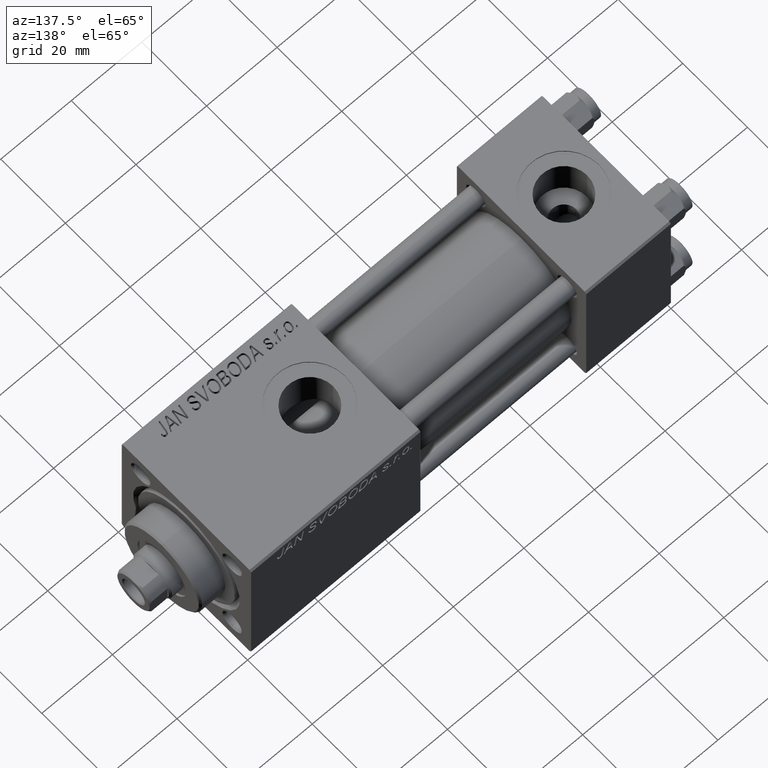
[diagram: clean part render]
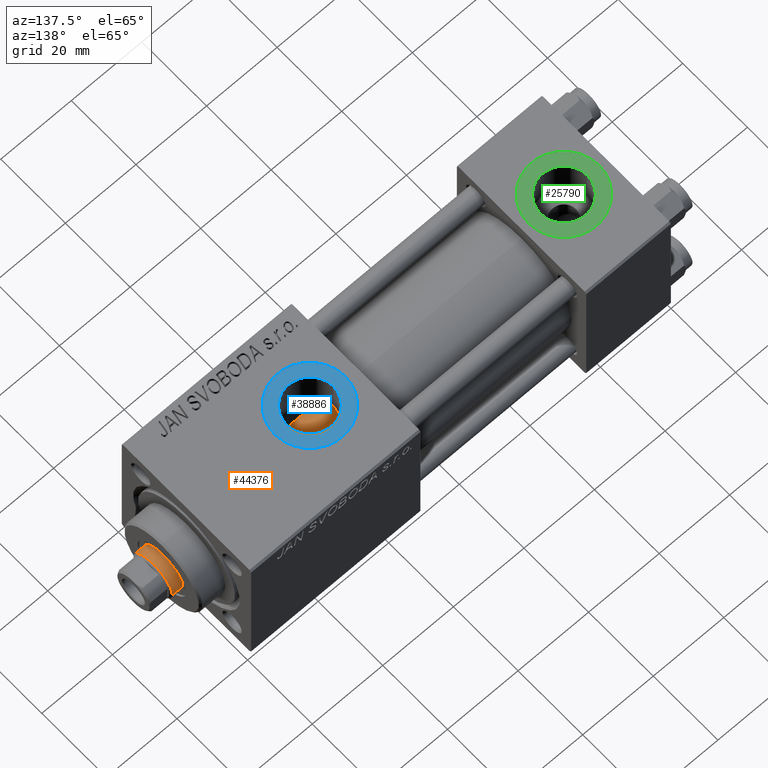
[diagram: same view with three faces highlighted in distinct colors, each labeled with its STEP entity id]
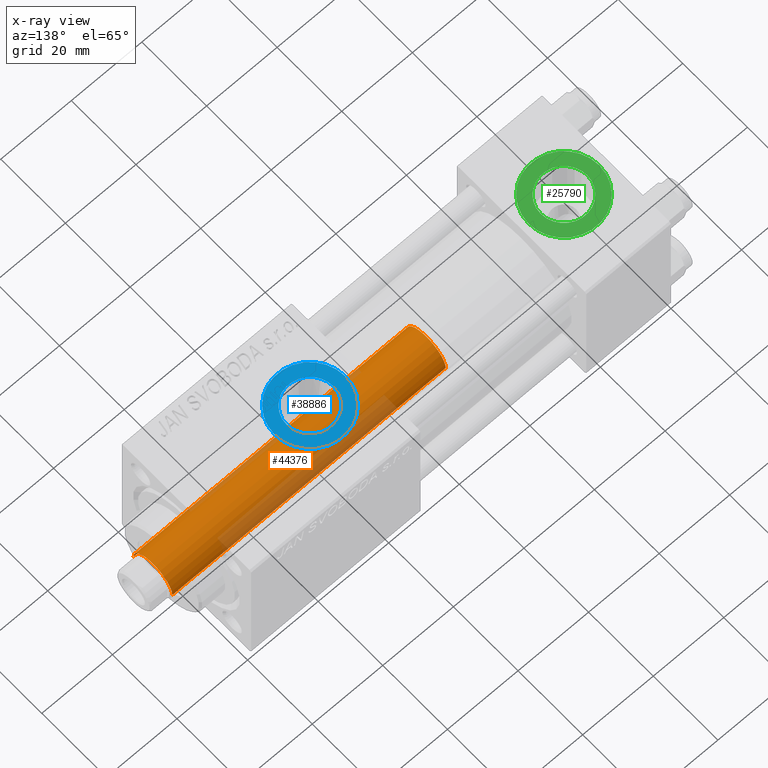
[diagram: x-ray of the same camera — body ghosted, the three highlighted faces saturated]
A machine part, auxiliary view with three faces highlighted in distinct colors.
The next image is the same camera in x-ray (body ghosted, the three faces saturated) — at least one of them is partly hidden behind the body in this view.
Their STEP definitions:

[orange] entity #44376 — the highlighted cylindrical surface (edge-blend (fillet) strip) has radius 6 mm, axis along (-1, 0, 0).
#307 = DIRECTION ( 'NONE',  ( 1.000000000000000000, 0.000000000000000000, 0.000000000000000000 ) ) ;
#438 = EDGE_CURVE ( 'NONE', #39662, #12034, #10447, .T. ) ;
#3072 = FACE_OUTER_BOUND ( 'NONE', #12816, .T. ) ;
#5987 = VERTEX_POINT ( 'NONE', #17781 ) ;
#6089 = DIRECTION ( 'NONE',  ( -0.000000000000000000, -0.000000000000000000, -1.000000000000000000 ) ) ;
#8548 = CARTESIAN_POINT ( 'NONE',  ( 0.000000000000000000, 0.000000000000000000, 104.5000000000000142 ) ) ;
#10199 = LINE ( 'NONE', #21615, #47720 ) ;
#10447 = CIRCLE ( 'NONE', #12093, 6.000000000000000888 ) ;
#12034 = VERTEX_POINT ( 'NONE', #41302 ) ;
#12093 = AXIS2_PLACEMENT_3D ( 'NONE', #15775, #14746, #307 ) ;
#12588 = CIRCLE ( 'NONE', #15001, 6.000000000000000888 ) ;
#12816 = EDGE_LOOP ( 'NONE', ( #41977, #26432, #30685, #48862 ) ) ;
#14746 = DIRECTION ( 'NONE',  ( 0.000000000000000000, 0.000000000000000000, 1.000000000000000000 ) ) ;
#15001 = AXIS2_PLACEMENT_3D ( 'NONE', #8548, #47570, #39717 ) ;
#15775 = CARTESIAN_POINT ( 'NONE',  ( 0.000000000000000000, 0.000000000000000000, 27.00000000000000000 ) ) ;
#16055 = VERTEX_POINT ( 'NONE', #17748 ) ;
#17748 = CARTESIAN_POINT ( 'NONE',  ( -6.000000000000000888, 0.000000000000000000, 104.5000000000000142 ) ) ;
#17781 = CARTESIAN_POINT ( 'NONE',  ( 6.000000000000000888, 7.347880794884120722E-16, 104.5000000000000142 ) ) ;
#18520 = DIRECTION ( 'NONE',  ( -0.000000000000000000, -0.000000000000000000, -1.000000000000000000 ) ) ;
#19436 = CARTESIAN_POINT ( 'NONE',  ( -6.000000000000000888, 0.000000000000000000, 27.00000000000000000 ) ) ;
#21615 = CARTESIAN_POINT ( 'NONE',  ( 6.000000000000000888, 7.347880794884120722E-16, 105.0000000000000000 ) ) ;
#26432 = ORIENTED_EDGE ( 'NONE', *, *, #50014, .T. ) ;
#29719 = DIRECTION ( 'NONE',  ( -0.000000000000000000, -0.000000000000000000, -1.000000000000000000 ) ) ;
#30685 = ORIENTED_EDGE ( 'NONE', *, *, #43630, .T. ) ;
#33195 = EDGE_CURVE ( 'NONE', #5987, #12034, #10199, .T. ) ;
#37265 = CARTESIAN_POINT ( 'NONE',  ( -6.000000000000000888, 0.000000000000000000, 105.0000000000000000 ) ) ;
#37800 = CYLINDRICAL_SURFACE ( 'NONE', #48841, 6.000000000000000888 ) ;
#39662 = VERTEX_POINT ( 'NONE', #19436 ) ;
#39717 = DIRECTION ( 'NONE',  ( 1.000000000000000000, 0.000000000000000000, 0.000000000000000000 ) ) ;
#39839 = VECTOR ( 'NONE', #6089, 1000.000000000000000 ) ;
#41057 = LINE ( 'NONE', #37265, #39839 ) ;
#41302 = CARTESIAN_POINT ( 'NONE',  ( 6.000000000000000888, 7.347880794884120722E-16, 27.00000000000000000 ) ) ;
#41596 = CARTESIAN_POINT ( 'NONE',  ( 0.000000000000000000, 0.000000000000000000, 105.0000000000000000 ) ) ;
#41977 = ORIENTED_EDGE ( 'NONE', *, *, #33195, .F. ) ;
#43359 = DIRECTION ( 'NONE',  ( -1.000000000000000000, 0.000000000000000000, 0.000000000000000000 ) ) ;
#43630 = EDGE_CURVE ( 'NONE', #16055, #39662, #41057, .T. ) ;
#44376 = ADVANCED_FACE ( 'NONE', ( #3072 ), #37800, .T. ) ;
#47570 = DIRECTION ( 'NONE',  ( 0.000000000000000000, 0.000000000000000000, -1.000000000000000000 ) ) ;
#47720 = VECTOR ( 'NONE', #29719, 1000.000000000000000 ) ;
#48841 = AXIS2_PLACEMENT_3D ( 'NONE', #41596, #18520, #43359 ) ;
#48862 = ORIENTED_EDGE ( 'NONE', *, *, #438, .T. ) ;
#50014 = EDGE_CURVE ( 'NONE', #5987, #16055, #12588, .T. ) ;

[blue] entity #38886 — the highlighted planar face has unit normal (0, 0, 1).
#1621 = CARTESIAN_POINT ( 'NONE',  ( 84.00000000000000000, -1.734723475976806897E-15, 19.80000000000000071 ) ) ;
#2330 = FACE_OUTER_BOUND ( 'NONE', #44948, .T. ) ;
#3227 = CARTESIAN_POINT ( 'NONE',  ( 84.00000000000000000, -1.734723475976806897E-15, 19.80000000000000071 ) ) ;
#4569 = ORIENTED_EDGE ( 'NONE', *, *, #34818, .T. ) ;
#5597 = CIRCLE ( 'NONE', #34773, 10.00000000000154898 ) ;
#7274 = DIRECTION ( 'NONE',  ( -0.000000000000000000, -0.000000000000000000, -1.000000000000000000 ) ) ;
#12485 = EDGE_CURVE ( 'NONE', #14275, #23815, #49681, .T. ) ;
#13730 = PLANE ( 'NONE',  #43810 ) ;
#14275 = VERTEX_POINT ( 'NONE', #23216 ) ;
#14559 = AXIS2_PLACEMENT_3D ( 'NONE', #1621, #48502, #24671 ) ;
#15649 = EDGE_CURVE ( 'NONE', #36554, #26374, #5597, .T. ) ;
#17613 = DIRECTION ( 'NONE',  ( 1.000000000000000000, 0.000000000000000000, 0.000000000000000000 ) ) ;
#22726 = DIRECTION ( 'NONE',  ( 1.000000000000000000, 0.000000000000000000, 0.000000000000000000 ) ) ;
#23216 = CARTESIAN_POINT ( 'NONE',  ( 77.41999999999846693, -1.734723475976806897E-15, 19.80000000000000071 ) ) ;
#23276 = CARTESIAN_POINT ( 'NONE',  ( 84.00000000000000000, -1.734723475976806897E-15, 19.80000000000000071 ) ) ;
#23815 = VERTEX_POINT ( 'NONE', #39958 ) ;
#24671 = DIRECTION ( 'NONE',  ( 1.000000000000000000, 0.000000000000000000, 0.000000000000000000 ) ) ;
#26374 = VERTEX_POINT ( 'NONE', #30568 ) ;
#28561 = ORIENTED_EDGE ( 'NONE', *, *, #15649, .T. ) ;
#30568 = CARTESIAN_POINT ( 'NONE',  ( 73.99999999999845102, -5.100766768292640183E-16, 19.80000000000000071 ) ) ;
#33253 = FACE_BOUND ( 'NONE', #37694, .T. ) ;
#34773 = AXIS2_PLACEMENT_3D ( 'NONE', #44476, #44730, #17613 ) ;
#34818 = EDGE_CURVE ( 'NONE', #23815, #14275, #48558, .T. ) ;
#36554 = VERTEX_POINT ( 'NONE', #48648 ) ;
#37058 = CARTESIAN_POINT ( 'NONE',  ( 84.00000000000000000, -1.734723475976806897E-15, 19.80000000000000071 ) ) ;
#37243 = ORIENTED_EDGE ( 'NONE', *, *, #38477, .T. ) ;
#37694 = EDGE_LOOP ( 'NONE', ( #42430, #4569 ) ) ;
#38350 = AXIS2_PLACEMENT_3D ( 'NONE', #3227, #7274, #22726 ) ;
#38477 = EDGE_CURVE ( 'NONE', #26374, #36554, #47878, .T. ) ;
#38886 = ADVANCED_FACE ( 'NONE', ( #33253, #2330 ), #13730, .T. ) ;
#39958 = CARTESIAN_POINT ( 'NONE',  ( 90.58000000000154728, -9.289058821376599092E-16, 19.80000000000000071 ) ) ;
#41101 = DIRECTION ( 'NONE',  ( 1.000000000000000000, 0.000000000000000000, -0.000000000000000000 ) ) ;
#41349 = DIRECTION ( 'NONE',  ( 0.000000000000000000, 0.000000000000000000, 1.000000000000000000 ) ) ;
#42430 = ORIENTED_EDGE ( 'NONE', *, *, #12485, .T. ) ;
#43019 = AXIS2_PLACEMENT_3D ( 'NONE', #23276, #47109, #50158 ) ;
#43810 = AXIS2_PLACEMENT_3D ( 'NONE', #37058, #41349, #41101 ) ;
#44476 = CARTESIAN_POINT ( 'NONE',  ( 84.00000000000000000, -1.734723475976806897E-15, 19.80000000000000071 ) ) ;
#44730 = DIRECTION ( 'NONE',  ( 0.000000000000000000, 0.000000000000000000, 1.000000000000000000 ) ) ;
#44948 = EDGE_LOOP ( 'NONE', ( #28561, #37243 ) ) ;
#47109 = DIRECTION ( 'NONE',  ( 0.000000000000000000, 0.000000000000000000, 1.000000000000000000 ) ) ;
#47878 = CIRCLE ( 'NONE', #43019, 10.00000000000154898 ) ;
#48502 = DIRECTION ( 'NONE',  ( -0.000000000000000000, -0.000000000000000000, -1.000000000000000000 ) ) ;
#48558 = CIRCLE ( 'NONE', #14559, 6.580000000001542837 ) ;
#48648 = CARTESIAN_POINT ( 'NONE',  ( 94.00000000000154898, -1.734723475976806897E-15, 19.80000000000000071 ) ) ;
#49681 = CIRCLE ( 'NONE', #38350, 6.580000000001542837 ) ;
#50158 = DIRECTION ( 'NONE',  ( 1.000000000000000000, 0.000000000000000000, 0.000000000000000000 ) ) ;

[green] entity #25790 — the highlighted planar face has unit normal (0, 0, 1).
#1046 = ORIENTED_EDGE ( 'NONE', *, *, #35112, .T. ) ;
#1079 = PLANE ( 'NONE',  #47582 ) ;
#1382 = EDGE_CURVE ( 'NONE', #2066, #36847, #9696, .T. ) ;
#2066 = VERTEX_POINT ( 'NONE', #17568 ) ;
#4058 = AXIS2_PLACEMENT_3D ( 'NONE', #42901, #42137, #8175 ) ;
#4821 = AXIS2_PLACEMENT_3D ( 'NONE', #48250, #9222, #28488 ) ;
#8175 = DIRECTION ( 'NONE',  ( 1.000000000000000000, 0.000000000000000000, 0.000000000000000000 ) ) ;
#8920 = FACE_OUTER_BOUND ( 'NONE', #39466, .T. ) ;
#9222 = DIRECTION ( 'NONE',  ( 0.000000000000000000, 0.000000000000000000, 1.000000000000000000 ) ) ;
#9440 = DIRECTION ( 'NONE',  ( 0.000000000000000000, 0.000000000000000000, 1.000000000000000000 ) ) ;
#9696 = CIRCLE ( 'NONE', #38025, 9.999999999999998224 ) ;
#12994 = DIRECTION ( 'NONE',  ( 1.000000000000000000, 0.000000000000000000, 0.000000000000000000 ) ) ;
#15578 = ORIENTED_EDGE ( 'NONE', *, *, #34004, .F. ) ;
#16702 = CARTESIAN_POINT ( 'NONE',  ( 18.57999999999999829, 1.540743955509788682E-30, 19.79999999999999716 ) ) ;
#16763 = DIRECTION ( 'NONE',  ( 0.000000000000000000, 0.000000000000000000, 1.000000000000000000 ) ) ;
#16798 = CARTESIAN_POINT ( 'NONE',  ( 12.00000000000000000, 1.540743955509788682E-30, 19.79999999999999716 ) ) ;
#17317 = CARTESIAN_POINT ( 'NONE',  ( 5.420000000000000817, 8.058175938389596335E-16, 19.79999999999999716 ) ) ;
#17568 = CARTESIAN_POINT ( 'NONE',  ( 22.00000000000000000, 1.540743955509788682E-30, 19.79999999999999716 ) ) ;
#17767 = DIRECTION ( 'NONE',  ( 0.000000000000000000, 0.000000000000000000, 1.000000000000000000 ) ) ;
#18607 = ORIENTED_EDGE ( 'NONE', *, *, #37179, .F. ) ;
#24354 = CARTESIAN_POINT ( 'NONE',  ( 12.00000000000000000, 1.540743955509788682E-30, 19.79999999999999716 ) ) ;
#25790 = ADVANCED_FACE ( 'NONE', ( #35805, #8920 ), #1079, .T. ) ;
#28488 = DIRECTION ( 'NONE',  ( 1.000000000000000000, 0.000000000000000000, 0.000000000000000000 ) ) ;
#30727 = CIRCLE ( 'NONE', #4821, 6.579999999999999183 ) ;
#30756 = CIRCLE ( 'NONE', #4058, 9.999999999999998224 ) ;
#30956 = ORIENTED_EDGE ( 'NONE', *, *, #1382, .T. ) ;
#31209 = VERTEX_POINT ( 'NONE', #16702 ) ;
#31622 = CIRCLE ( 'NONE', #49445, 6.579999999999999183 ) ;
#31944 = VERTEX_POINT ( 'NONE', #17317 ) ;
#33979 = CARTESIAN_POINT ( 'NONE',  ( 12.00000000000000000, 1.540743955509788682E-30, 19.79999999999999716 ) ) ;
#34004 = EDGE_CURVE ( 'NONE', #31209, #31944, #30727, .T. ) ;
#35112 = EDGE_CURVE ( 'NONE', #36847, #2066, #30756, .T. ) ;
#35793 = DIRECTION ( 'NONE',  ( 1.000000000000000000, 0.000000000000000000, 0.000000000000000000 ) ) ;
#35805 = FACE_BOUND ( 'NONE', #50013, .T. ) ;
#36847 = VERTEX_POINT ( 'NONE', #36933 ) ;
#36933 = CARTESIAN_POINT ( 'NONE',  ( 2.000000000000003553, 1.224646799147354440E-15, 19.79999999999999716 ) ) ;
#37179 = EDGE_CURVE ( 'NONE', #31944, #31209, #31622, .T. ) ;
#37538 = DIRECTION ( 'NONE',  ( 1.000000000000000000, 0.000000000000000000, -0.000000000000000000 ) ) ;
#38025 = AXIS2_PLACEMENT_3D ( 'NONE', #24354, #16763, #35793 ) ;
#39466 = EDGE_LOOP ( 'NONE', ( #30956, #1046 ) ) ;
#42137 = DIRECTION ( 'NONE',  ( 0.000000000000000000, 0.000000000000000000, 1.000000000000000000 ) ) ;
#42901 = CARTESIAN_POINT ( 'NONE',  ( 12.00000000000000000, 1.540743955509788682E-30, 19.79999999999999716 ) ) ;
#47582 = AXIS2_PLACEMENT_3D ( 'NONE', #33979, #17767, #37538 ) ;
#48250 = CARTESIAN_POINT ( 'NONE',  ( 12.00000000000000000, 1.540743955509788682E-30, 19.79999999999999716 ) ) ;
#49445 = AXIS2_PLACEMENT_3D ( 'NONE', #16798, #9440, #12994 ) ;
#50013 = EDGE_LOOP ( 'NONE', ( #15578, #18607 ) ) ;